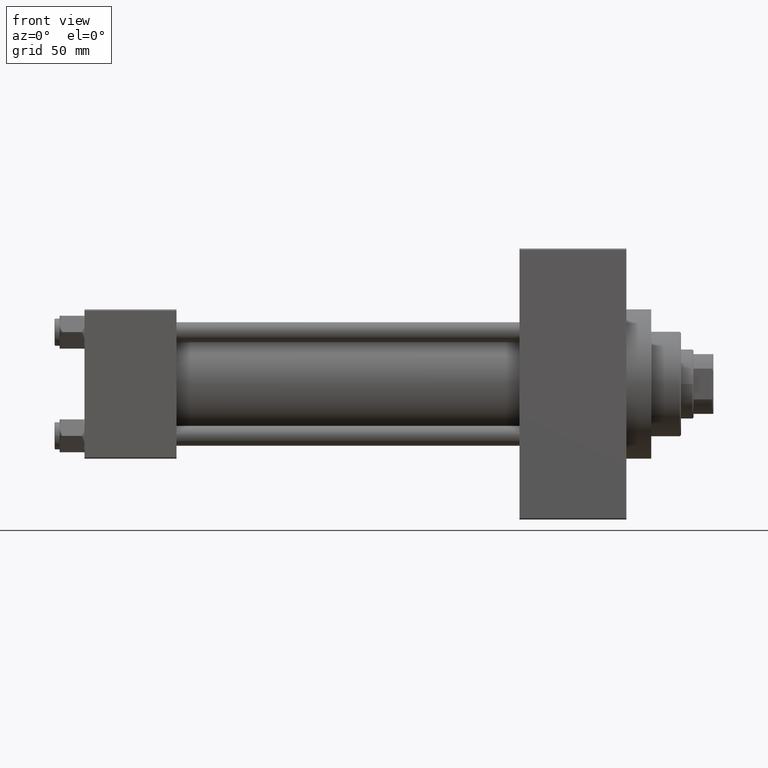
[diagram: clean part render]
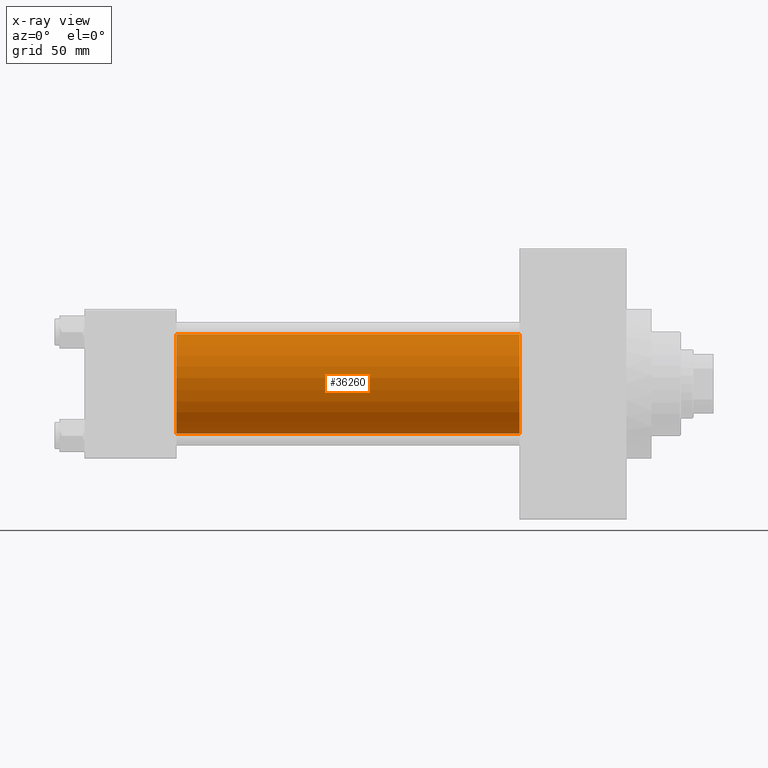
[diagram: x-ray — body ghosted, one internal face saturated and labeled with its STEP entity id]
A machine part, front view, then the same camera in x-ray: the body is ghosted and one INTERNAL B-rep face — a face not visible from any outside direction — is saturated and labeled: STEP entity #36260.
In plain terms, the highlighted cylindrical surface (partial cylindrical patch) has radius 20 mm, axis along (-1, -0, -0).
Its self-contained STEP definition (entity closure, byte-faithful):
#1027 = CIRCLE ( 'NONE', #26498, 20.00000000000000000 ) ;
#3179 = CARTESIAN_POINT ( 'NONE',  ( 175.0000000000000284, -2.602085213965210642E-15, 20.00000000000000000 ) ) ;
#4033 = CARTESIAN_POINT ( 'NONE',  ( 37.00000000000000000, -1.527916156705042519E-16, -20.00000000000000000 ) ) ;
#4245 = CIRCLE ( 'NONE', #20955, 20.00000000000000000 ) ;
#4406 = EDGE_LOOP ( 'NONE', ( #42557, #32375, #24174, #13656 ) ) ;
#9334 = CARTESIAN_POINT ( 'NONE',  ( 175.0000000000000284, -2.602085213965210642E-15, 0.000000000000000000 ) ) ;
#9504 = LINE ( 'NONE', #21187, #14164 ) ;
#12334 = DIRECTION ( 'NONE',  ( -1.000000000000000000, -0.000000000000000000, -0.000000000000000000 ) ) ;
#13656 = ORIENTED_EDGE ( 'NONE', *, *, #32557, .F. ) ;
#13663 = AXIS2_PLACEMENT_3D ( 'NONE', #9334, #12334, #42728 ) ;
#14164 = VECTOR ( 'NONE', #44120, 1000.000000000000000 ) ;
#18074 = CARTESIAN_POINT ( 'NONE',  ( 37.00000000000000000, -2.602085213965210642E-15, 0.000000000000000000 ) ) ;
#18884 = DIRECTION ( 'NONE',  ( 0.000000000000000000, 0.000000000000000000, -1.000000000000000000 ) ) ;
#19239 = VECTOR ( 'NONE', #48068, 1000.000000000000000 ) ;
#20955 = AXIS2_PLACEMENT_3D ( 'NONE', #29850, #26357, #18884 ) ;
#21187 = CARTESIAN_POINT ( 'NONE',  ( 175.0000000000000284, -1.527916156705042519E-16, -20.00000000000000000 ) ) ;
#22170 = VERTEX_POINT ( 'NONE', #4033 ) ;
#23146 = EDGE_CURVE ( 'NONE', #49011, #22170, #9504, .T. ) ;
#24174 = ORIENTED_EDGE ( 'NONE', *, *, #39293, .F. ) ;
#25390 = CARTESIAN_POINT ( 'NONE',  ( 175.0000000000000284, -2.602085213965210642E-15, 20.00000000000000000 ) ) ;
#26357 = DIRECTION ( 'NONE',  ( 1.000000000000000000, 0.000000000000000000, 0.000000000000000000 ) ) ;
#26498 = AXIS2_PLACEMENT_3D ( 'NONE', #18074, #33282, #48477 ) ;
#27958 = CARTESIAN_POINT ( 'NONE',  ( 175.0000000000000284, -1.527916156705042519E-16, -20.00000000000000000 ) ) ;
#29850 = CARTESIAN_POINT ( 'NONE',  ( 175.0000000000000284, -2.602085213965210642E-15, 0.000000000000000000 ) ) ;
#31491 = EDGE_CURVE ( 'NONE', #45029, #49011, #4245, .T. ) ;
#32375 = ORIENTED_EDGE ( 'NONE', *, *, #23146, .T. ) ;
#32557 = EDGE_CURVE ( 'NONE', #45029, #46659, #36611, .T. ) ;
#33282 = DIRECTION ( 'NONE',  ( 1.000000000000000000, 0.000000000000000000, 0.000000000000000000 ) ) ;
#36260 = ADVANCED_FACE ( 'NONE', ( #39478 ), #43461, .F. ) ;
#36611 = LINE ( 'NONE', #25390, #19239 ) ;
#39293 = EDGE_CURVE ( 'NONE', #46659, #22170, #1027, .T. ) ;
#39478 = FACE_OUTER_BOUND ( 'NONE', #4406, .T. ) ;
#40563 = CARTESIAN_POINT ( 'NONE',  ( 37.00000000000000000, -2.602085213965210642E-15, 20.00000000000000000 ) ) ;
#42557 = ORIENTED_EDGE ( 'NONE', *, *, #31491, .T. ) ;
#42728 = DIRECTION ( 'NONE',  ( 0.000000000000000000, 0.000000000000000000, 1.000000000000000000 ) ) ;
#43461 = CYLINDRICAL_SURFACE ( 'NONE', #13663, 20.00000000000000000 ) ;
#44120 = DIRECTION ( 'NONE',  ( -1.000000000000000000, -0.000000000000000000, -0.000000000000000000 ) ) ;
#45029 = VERTEX_POINT ( 'NONE', #3179 ) ;
#46659 = VERTEX_POINT ( 'NONE', #40563 ) ;
#48068 = DIRECTION ( 'NONE',  ( -1.000000000000000000, -0.000000000000000000, -0.000000000000000000 ) ) ;
#48477 = DIRECTION ( 'NONE',  ( 0.000000000000000000, 0.000000000000000000, -1.000000000000000000 ) ) ;
#49011 = VERTEX_POINT ( 'NONE', #27958 ) ;